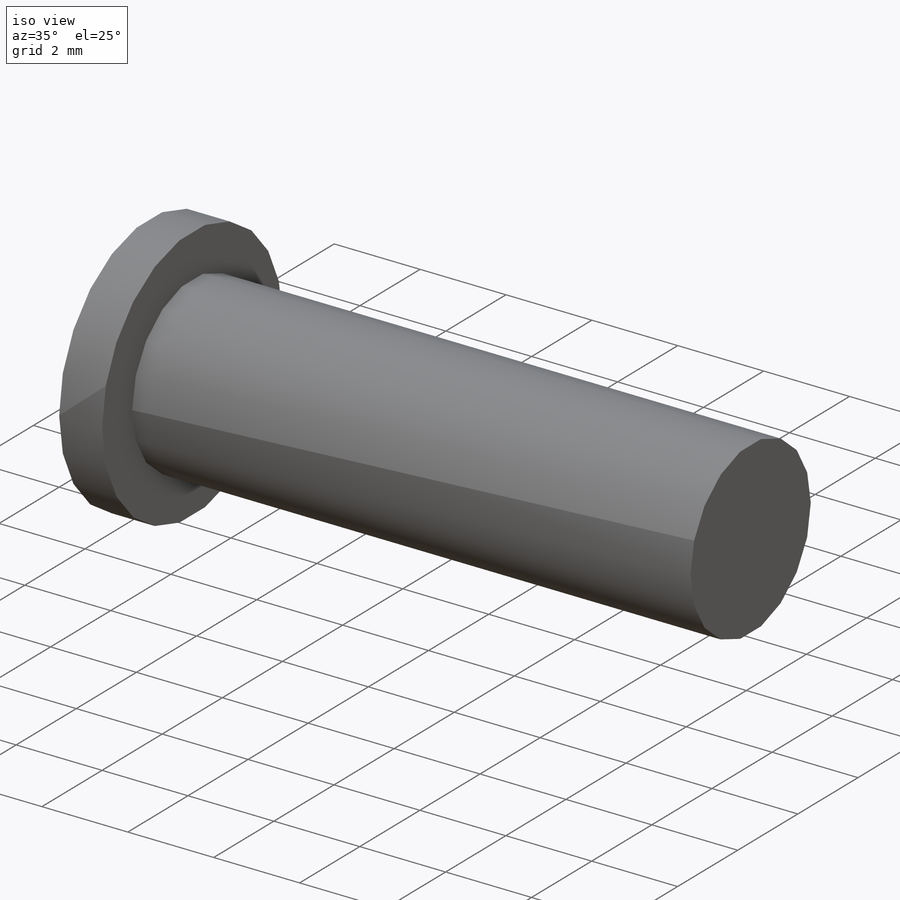
[diagram: iso view]
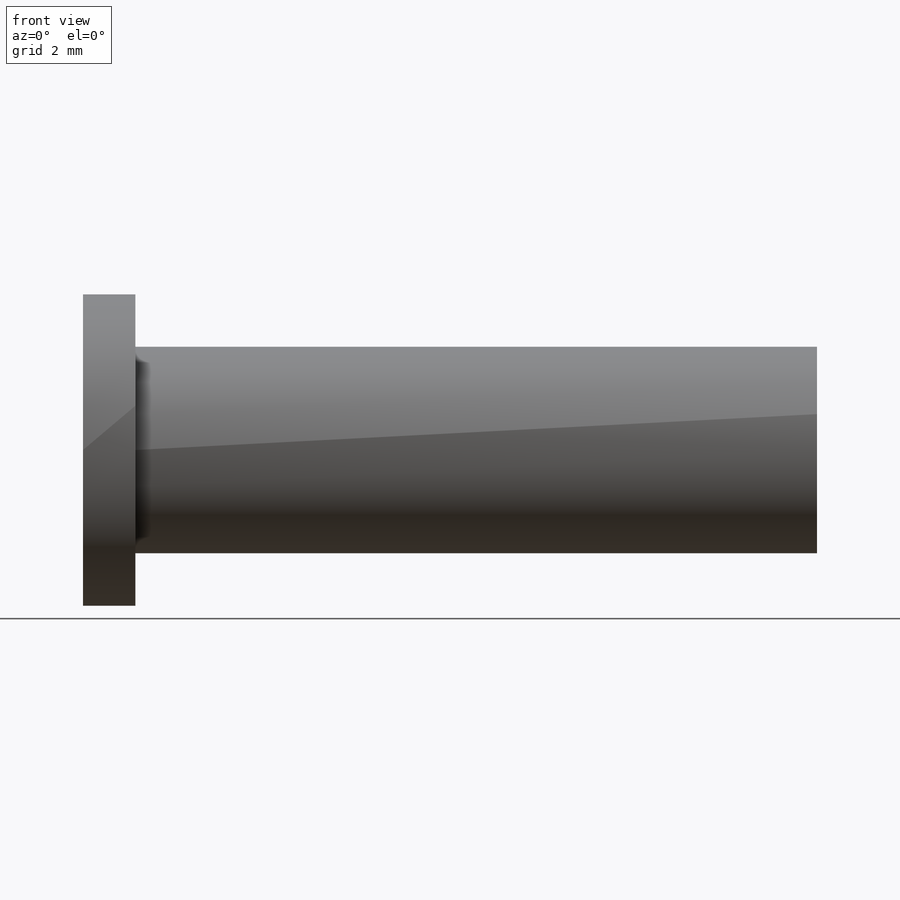
[diagram: front view]
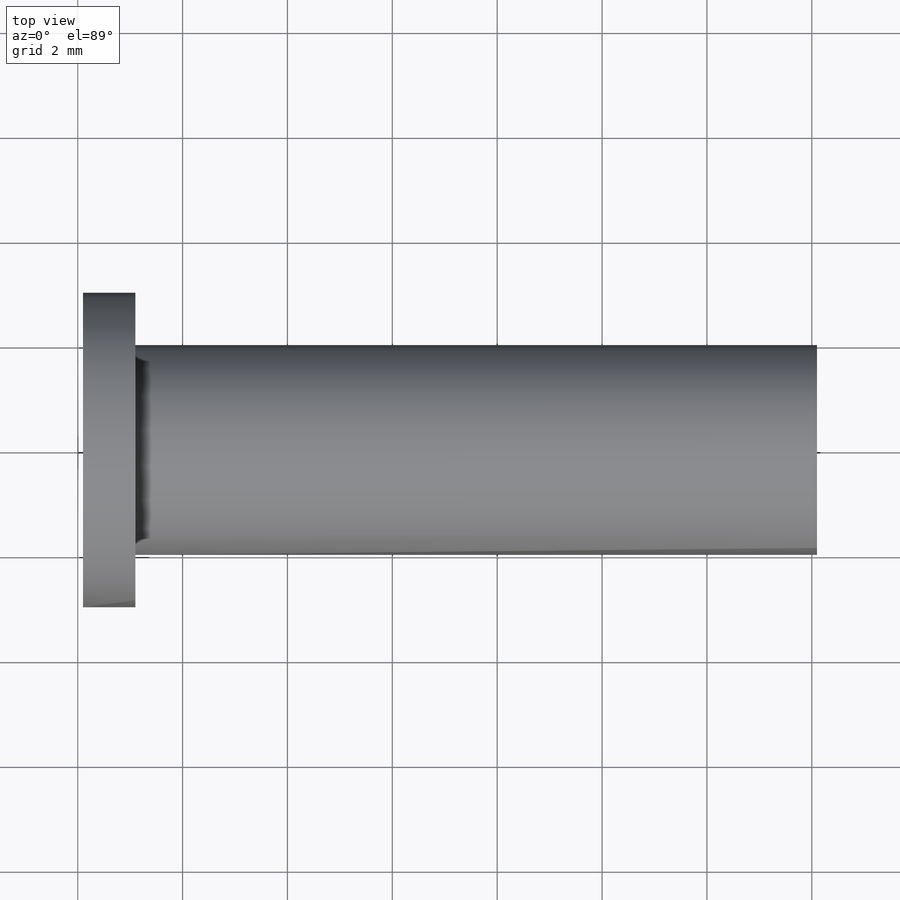
[diagram: top view]
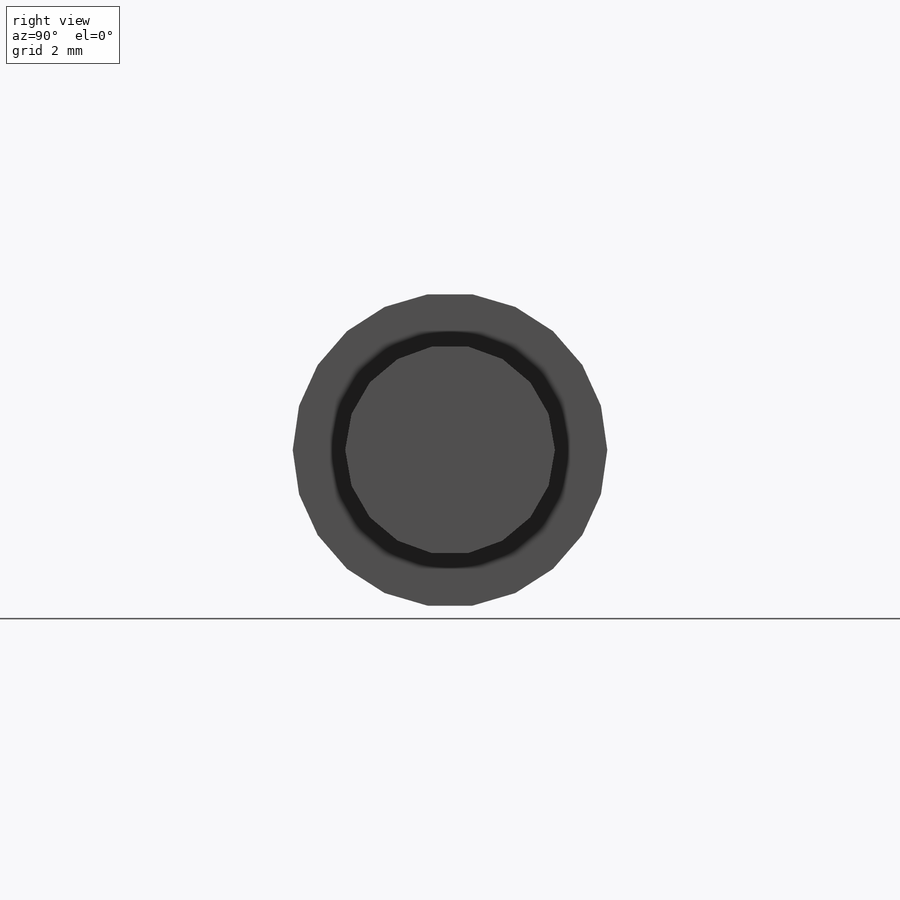
[diagram: right view]
SOLIDWORKS PART (.sldprt)
format: sldprt  version: not decoded by parser v0  size: 393,728 bytes
history: native  units: mm
features: plane x3, sketch x2, material x1, revolve x1, thread x1, cut_revolve x1, pattern_linear x1 (+12 scaffold rows collapsed)
feature tree (22):
  scaffold x12  (default folders/planes/origin — collapsed)
  material  "Material <not specified>"
  plane  "Plane1"
  plane  "Plane2"
  plane  "Plane3"
  sketch  "BodySke"  dims[c1.Head_fillet_rad=1.6mm c1.D1=~7.099516mm c1.Head_ang=85.0deg c1.Oval_ht=2.3876mm c1.Head_ht=6.1976mm c1.Diameter=4.0mm c1.Length=76.2mm c1.Head_dia=20.0152mm c2.Head_dia=15.3924mm c2.Head_ht=8.509mm c2.Length=13.0mm c2.Head_side_ht=6.1722mm c3.Head_ht=3.1mm c3.Head_dia=8.0mm c3.Advance=0.7mm c3.Thread_nom=13.0mm c3.Thread_lim=36.5125mm c3.D1=1.0mm]
  revolve  "Base-Revolve"  [1 undecoded]
  thread  "ThreadCosmetic"  Diameter=12.3mm Thread_length=12.3mm Thread_minor=3.22mm  [1 undecoded]
  sketch  "ThdSchSke"  dims[c1.Thread_minor=~1.03886mm c1.Diameter=~1.413535mm c1.Start=~0.988134mm c1.D4=~4.446753mm c1.Vee=60.0deg c2.Thread_minor=~1.03886mm c2.Start=~2.540025mm c2.D1=~0.108159mm c2.D2=~0.108159mm c3.D1=~0.216319mm c3.SideAngle=55.0deg c3.D2=~0.216319mm c3.VeeAngle=70.0deg c3.Thread_minor=3.22mm c3.Overcut=5.0mm c3.Diameter=4.0mm c3.D6=~8.326268mm c4.D1=~8.326268mm c5.D1=90.0deg c5.Start=11.1125mm c6.Start=~44.450025mm c7.Start=3.8mm]
  cut_revolve  "ThreadSchematic"  Angle=360deg
  pattern_linear  "ThdSchPat"  Count1=19 Count2=1 Spacing1=0.683333mm Spacing2=50mm Num_threads=19 Advance=0.683333mm ConfigurationName=0mm CopiedFlag=0 PartNumberID=0mm
decode coverage: 5 of 6 modeling features carry decoded parameters
note: ~ marks probable driven/reference dimensions
note: 2 parameter values undecoded
note: suppression state not decoded; provenance and decode notes live in map.json
